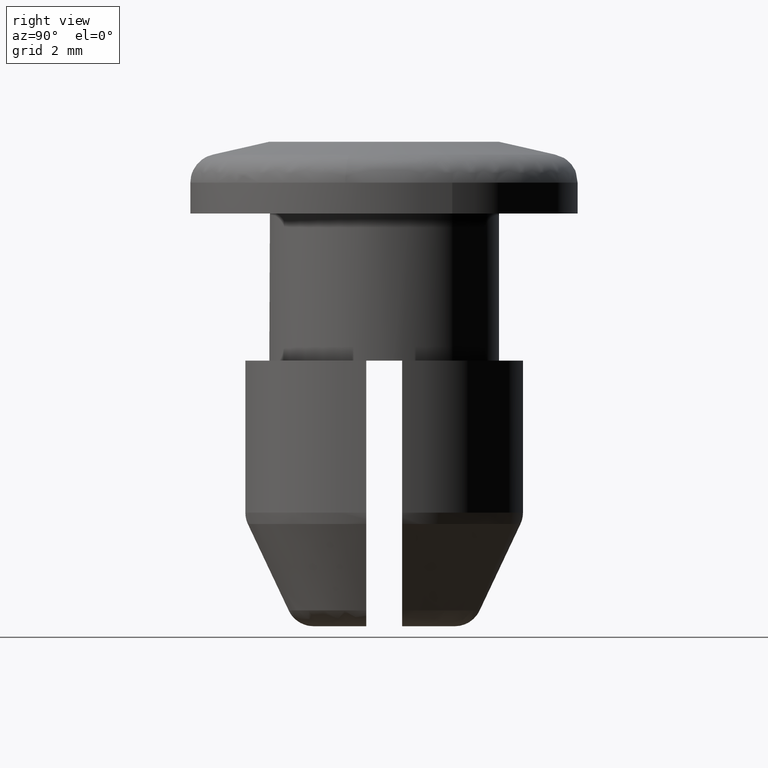
[diagram: clean part render]
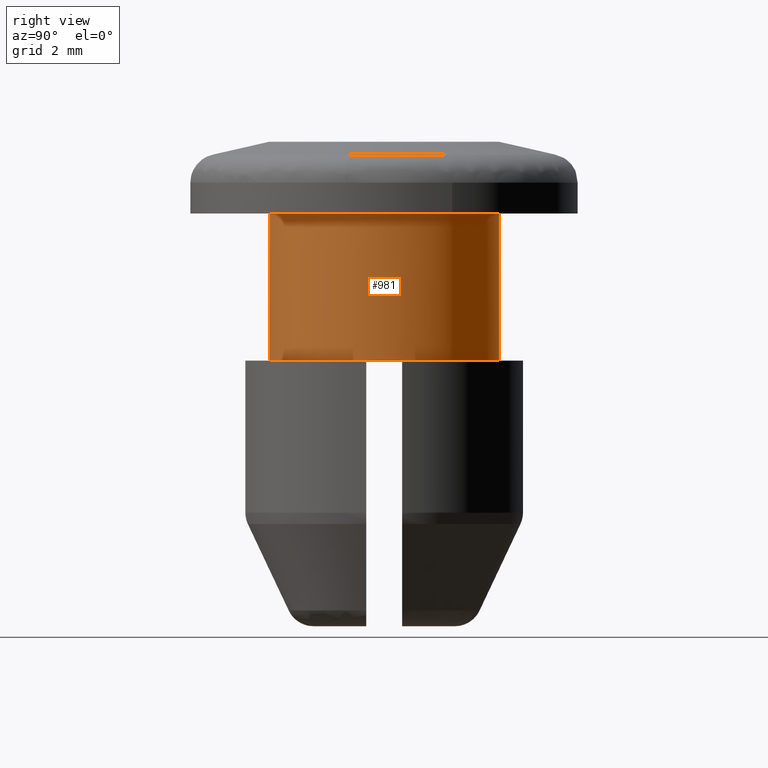
[diagram: same view with one face highlighted and labeled with its STEP entity id]
A machine part, right view. The second image highlights one B-rep face of the part: STEP entity #981.
In plain terms, the highlighted face is a freeform B-spline surface patch.
Its self-contained STEP definition (entity closure, byte-faithful):
#804=CARTESIAN_POINT('',(-2.321609333131504,-2.202301093019909,-6.202500000000001));
#805=CARTESIAN_POINT('',(-0.119308240111595,-4.523910426151414,-6.202500000000001));
#806=CARTESIAN_POINT('',(2.202301093019909,-2.321609333131504,-6.202500000000001));
#807=CARTESIAN_POINT('',(4.523910426151414,-0.119308240111595,-6.202500000000001));
#808=CARTESIAN_POINT('',(2.321609333131504,2.202301093019909,-6.202500000000001));
#809=CARTESIAN_POINT('',(0.119308240111595,4.523910426151414,-6.202500000000001));
#810=CARTESIAN_POINT('',(-2.202301093019909,2.321609333131504,-6.202500000000001));
#811=CARTESIAN_POINT('',(-2.321609333131504,-2.202301093019909,-1.894937499999999));
#812=CARTESIAN_POINT('',(-0.119308240111595,-4.523910426151414,-1.894937499999999));
#813=CARTESIAN_POINT('',(2.202301093019909,-2.321609333131504,-1.894937499999999));
#814=CARTESIAN_POINT('',(4.523910426151414,-0.119308240111595,-1.894937499999999));
#815=CARTESIAN_POINT('',(2.321609333131504,2.202301093019909,-1.894937499999999));
#816=CARTESIAN_POINT('',(0.119308240111595,4.523910426151414,-1.894937499999999));
#817=CARTESIAN_POINT('',(-2.202301093019909,2.321609333131504,-1.894937499999999));
#825=(BOUNDED_SURFACE()B_SPLINE_SURFACE(2,1,((#804,#811),(#805,#812),(#806,#813),(#807,#814),(#808,#815),(#809,#816),(#810,#817)),.UNSPECIFIED.,.F.,.F.,.U.)B_SPLINE_SURFACE_WITH_KNOTS((3,2,2,3),(2,2),(0.0,5.301933598375615,10.603867196751230,15.905800795126851),(0.0,4.307562500000002),.UNSPECIFIED.)GEOMETRIC_REPRESENTATION_ITEM()RATIONAL_B_SPLINE_SURFACE(((1.0,1.0),(0.707106781186548,0.707106781186548),(1.0,1.0),(0.707106781186548,0.707106781186548),(1.0,1.0),(0.707106781186548,0.707106781186548),(1.0,1.0)))REPRESENTATION_ITEM('')SURFACE());
#826=CARTESIAN_POINT('',(-2.321609453257532,-2.202300966386118,-2.0));
#827=VERTEX_POINT('',#826);
#828=CARTESIAN_POINT('',(3.200000000000000,0.0,-2.0));
#829=VERTEX_POINT('',#828);
#830=CARTESIAN_POINT('',(-2.321609453257533,-2.202300966386118,-2.000000000000000));
#831=CARTESIAN_POINT('',(-1.375182696261689,-3.199999999999999,-2.000000000000000));
#832=CARTESIAN_POINT('',(0.0,-3.200000000000000,-2.0));
#833=CARTESIAN_POINT('',(3.200000000000000,-3.200000000000000,-2.000000000000000));
#834=CARTESIAN_POINT('',(3.200000000000000,0.0,-2.0));
#842=(BOUNDED_CURVE()B_SPLINE_CURVE(2,(#830,#831,#832,#833,#834),.UNSPECIFIED.,.F.,.U.)B_SPLINE_CURVE_WITH_KNOTS((3,2,3),(0.121021325173780,0.250000000000000,0.500000000000000),.UNSPECIFIED.)CURVE()GEOMETRIC_REPRESENTATION_ITEM()RATIONAL_B_SPLINE_CURVE((0.853701757207920,0.848892083087419,1.0,0.707106781186548,1.0))REPRESENTATION_ITEM(''));
#843=EDGE_CURVE('',#827,#829,#842,.T.);
#844=ORIENTED_EDGE('',*,*,#843,.F.);
#845=CARTESIAN_POINT('',(-2.321609423222823,-2.202300998047945,-6.099999999999911));
#846=VERTEX_POINT('',#845);
#847=CARTESIAN_POINT('',(-2.321609423222823,-2.202300998047945,-6.099999999999911));
#848=CARTESIAN_POINT('',(-2.321609453257532,-2.202300966386118,-2.0));
#849=QUASI_UNIFORM_CURVE('',1,(#847,#848),.UNSPECIFIED.,.F.,.U.);
#850=EDGE_CURVE('',#846,#827,#849,.T.);
#851=ORIENTED_EDGE('',*,*,#850,.F.);
#852=CARTESIAN_POINT('',(-0.500000000000011,-3.160696125855820,-6.100000000000001));
#853=VERTEX_POINT('',#852);
#854=CARTESIAN_POINT('',(-2.321609423222822,-2.202300998047945,-6.099999999999911));
#855=CARTESIAN_POINT('',(-1.573570263137163,-2.990864825979360,-6.099999999999946));
#856=CARTESIAN_POINT('',(-0.500000000000011,-3.160696125855820,-6.100000000000001));
#864=(BOUNDED_CURVE()B_SPLINE_CURVE(2,(#854,#855,#856),.UNSPECIFIED.,.F.,.U.)B_SPLINE_CURVE_WITH_KNOTS((3,3),(0.479718116204390,1.0),.UNSPECIFIED.)CURVE()GEOMETRIC_REPRESENTATION_ITEM()RATIONAL_B_SPLINE_CURVE((0.904610816140017,0.900577880386593,1.0))REPRESENTATION_ITEM(''));
#865=EDGE_CURVE('',#846,#853,#864,.T.);
#866=ORIENTED_EDGE('',*,*,#865,.T.);
#867=CARTESIAN_POINT('',(0.500000000000000,-3.160696125855820,-6.100000000000001));
#868=VERTEX_POINT('',#867);
#869=CARTESIAN_POINT('',(-0.500000000000011,-3.160696125855820,-6.100000000000001));
#870=CARTESIAN_POINT('',(-4.987330E-015,-3.239792625501865,-6.099999999999881));
#871=CARTESIAN_POINT('',(0.500000000000000,-3.160696125855820,-6.100000000000001));
#879=(BOUNDED_CURVE()B_SPLINE_CURVE(2,(#869,#870,#871),.UNSPECIFIED.,.F.,.U.)CURVE()GEOMETRIC_REPRESENTATION_ITEM()QUASI_UNIFORM_CURVE()RATIONAL_B_SPLINE_CURVE((1.0,0.987717539329944,1.0))REPRESENTATION_ITEM(''));
#880=EDGE_CURVE('',#853,#868,#879,.T.);
#881=ORIENTED_EDGE('',*,*,#880,.T.);
#882=CARTESIAN_POINT('',(3.160696125855820,-0.500000000000011,-6.099999999999881));
#883=VERTEX_POINT('',#882);
#884=CARTESIAN_POINT('',(0.500000000000000,-3.160696125855820,-6.100000000000001));
#885=CARTESIAN_POINT('',(2.797282169277570,-2.797282169277581,-6.099999999999882));
#886=CARTESIAN_POINT('',(3.160696125855820,-0.500000000000011,-6.099999999999881));
#894=(BOUNDED_CURVE()B_SPLINE_CURVE(2,(#884,#885,#886),.UNSPECIFIED.,.F.,.U.)CURVE()GEOMETRIC_REPRESENTATION_ITEM()QUASI_UNIFORM_CURVE()RATIONAL_B_SPLINE_CURVE((1.0,0.808907204517493,1.0))REPRESENTATION_ITEM(''));
#895=EDGE_CURVE('',#868,#883,#894,.T.);
#896=ORIENTED_EDGE('',*,*,#895,.T.);
#897=CARTESIAN_POINT('',(3.160696125855820,0.500000000000000,-6.099999999999881));
#898=VERTEX_POINT('',#897);
#899=CARTESIAN_POINT('',(3.160696125855820,-0.500000000000012,-6.099999999999881));
#900=CARTESIAN_POINT('',(3.239792625501865,-6.179952E-015,-6.099999999999881));
#901=CARTESIAN_POINT('',(3.160696125855822,0.499999999999999,-6.099999999999881));
#909=(BOUNDED_CURVE()B_SPLINE_CURVE(2,(#899,#900,#901),.UNSPECIFIED.,.F.,.U.)CURVE()GEOMETRIC_REPRESENTATION_ITEM()QUASI_UNIFORM_CURVE()RATIONAL_B_SPLINE_CURVE((1.0,0.987717539329944,1.0))REPRESENTATION_ITEM(''));
#910=EDGE_CURVE('',#883,#898,#909,.T.);
#911=ORIENTED_EDGE('',*,*,#910,.T.);
#912=CARTESIAN_POINT('',(0.500000000000000,3.160696125855820,-6.100000000000001));
#913=VERTEX_POINT('',#912);
#914=CARTESIAN_POINT('',(3.160696125855822,0.499999999999999,-6.099999999999881));
#915=CARTESIAN_POINT('',(2.797282169277580,2.797282169277579,-6.099999999999882));
#916=CARTESIAN_POINT('',(0.500000000000000,3.160696125855820,-6.100000000000001));
#924=(BOUNDED_CURVE()B_SPLINE_CURVE(2,(#914,#915,#916),.UNSPECIFIED.,.F.,.U.)CURVE()GEOMETRIC_REPRESENTATION_ITEM()QUASI_UNIFORM_CURVE()RATIONAL_B_SPLINE_CURVE((1.0,0.808907204517492,1.0))REPRESENTATION_ITEM(''));
#925=EDGE_CURVE('',#898,#913,#924,.T.);
#926=ORIENTED_EDGE('',*,*,#925,.T.);
#927=CARTESIAN_POINT('',(-0.500000000000011,3.160696125855820,-6.100000000000001));
#928=VERTEX_POINT('',#927);
#929=CARTESIAN_POINT('',(0.500000000000000,3.160696125855820,-6.100000000000001));
#930=CARTESIAN_POINT('',(-6.830474E-015,3.239792625501865,-6.099999999999881));
#931=CARTESIAN_POINT('',(-0.500000000000011,3.160696125855820,-6.100000000000001));
#939=(BOUNDED_CURVE()B_SPLINE_CURVE(2,(#929,#930,#931),.UNSPECIFIED.,.F.,.U.)CURVE()GEOMETRIC_REPRESENTATION_ITEM()QUASI_UNIFORM_CURVE()RATIONAL_B_SPLINE_CURVE((1.0,0.987717539329944,1.0))REPRESENTATION_ITEM(''));
#940=EDGE_CURVE('',#913,#928,#939,.T.);
#941=ORIENTED_EDGE('',*,*,#940,.T.);
#942=CARTESIAN_POINT('',(-2.202300998047945,2.321609423222822,-6.099999999999917));
#943=VERTEX_POINT('',#942);
#944=CARTESIAN_POINT('',(-0.500000000000011,3.160696125855820,-6.100000000000001));
#945=CARTESIAN_POINT('',(-1.481422092002840,3.005442021550380,-6.099999999999950));
#946=CARTESIAN_POINT('',(-2.202300998047945,2.321609423222822,-6.099999999999918));
#954=(BOUNDED_CURVE()B_SPLINE_CURVE(2,(#944,#945,#946),.UNSPECIFIED.,.F.,.U.)B_SPLINE_CURVE_WITH_KNOTS((3,3),(0.0,0.479718116204389),.UNSPECIFIED.)CURVE()GEOMETRIC_REPRESENTATION_ITEM()RATIONAL_B_SPLINE_CURVE((1.0,0.908329324130901,0.904610816140017))REPRESENTATION_ITEM(''));
#955=EDGE_CURVE('',#928,#943,#954,.T.);
#956=ORIENTED_EDGE('',*,*,#955,.T.);
#957=CARTESIAN_POINT('',(-2.202301032864988,2.321609390195043,-1.999999999999999));
#958=VERTEX_POINT('',#957);
#959=CARTESIAN_POINT('',(-2.202300998047945,2.321609423222822,-6.099999999999917));
#960=CARTESIAN_POINT('',(-2.202301032864988,2.321609390195043,-1.999999999999999));
#961=QUASI_UNIFORM_CURVE('',1,(#959,#960),.UNSPECIFIED.,.F.,.U.);
#962=EDGE_CURVE('',#943,#958,#961,.T.);
#963=ORIENTED_EDGE('',*,*,#962,.T.);
#964=CARTESIAN_POINT('',(3.200000000000000,0.0,-2.0));
#965=CARTESIAN_POINT('',(3.200000000000000,3.200000000000000,-2.000000000000000));
#966=CARTESIAN_POINT('',(0.0,3.200000000000000,-2.0));
#967=CARTESIAN_POINT('',(-1.276324082676867,3.200000000000000,-2.000000000000000));
#968=CARTESIAN_POINT('',(-2.202301032864988,2.321609390195043,-2.000000000000000));
#976=(BOUNDED_CURVE()B_SPLINE_CURVE(2,(#964,#965,#966,#967,#968),.UNSPECIFIED.,.F.,.U.)B_SPLINE_CURVE_WITH_KNOTS((3,2,3),(0.500000000000000,0.750000000000000,0.871021333816604),.UNSPECIFIED.)CURVE()GEOMETRIC_REPRESENTATION_ITEM()RATIONAL_B_SPLINE_CURVE((1.0,0.707106781186548,1.0,0.858214687973431,0.853701756563331))REPRESENTATION_ITEM(''));
#977=EDGE_CURVE('',#829,#958,#976,.T.);
#978=ORIENTED_EDGE('',*,*,#977,.F.);
#979=EDGE_LOOP('',(#844,#851,#866,#881,#896,#911,#926,#941,#956,#963,#978));
#980=FACE_OUTER_BOUND('',#979,.T.);
#981=ADVANCED_FACE('',(#980),#825,.T.);